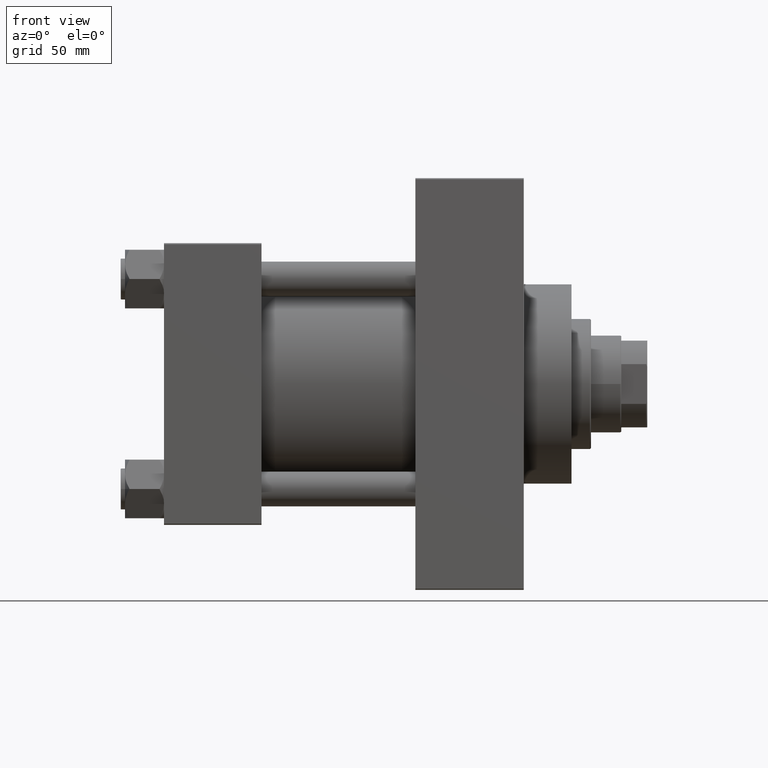
[diagram: clean part render]
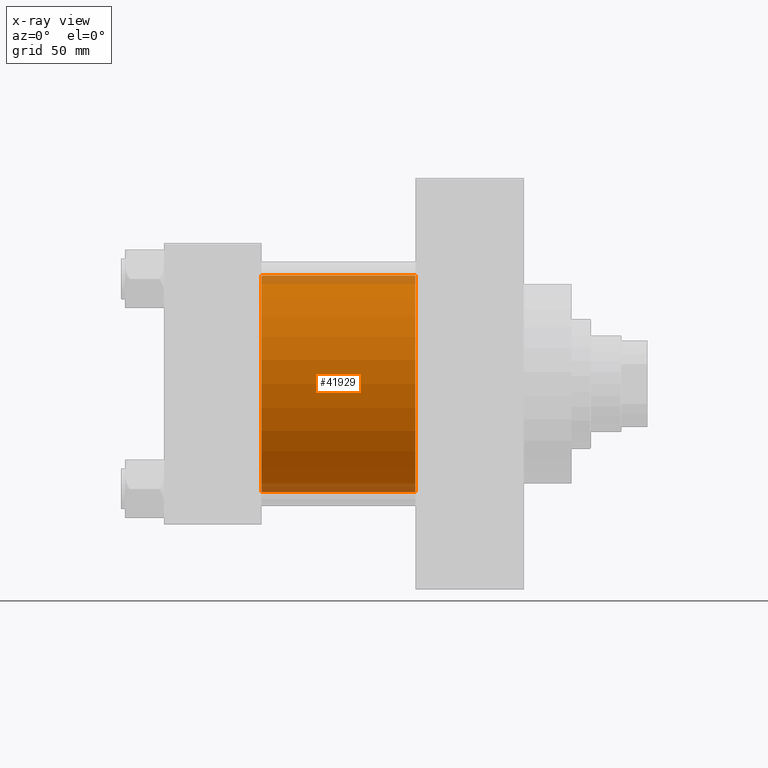
[diagram: x-ray — body ghosted, one internal face saturated and labeled with its STEP entity id]
A machine part, front view, then the same camera in x-ray: the body is ghosted and one INTERNAL B-rep face — a face not visible from any outside direction — is saturated and labeled: STEP entity #41929.
In plain terms, the highlighted cylindrical surface (partial cylindrical patch) has radius 50 mm, axis along (-1, -0, -0).
Its self-contained STEP definition (entity closure, byte-faithful):
#1729 = EDGE_CURVE ( 'NONE', #11624, #32581, #26544, .T. ) ;
#2536 = CARTESIAN_POINT ( 'NONE',  ( 45.00000000000000000, -2.602085213965210642E-15, 0.000000000000000000 ) ) ;
#3032 = AXIS2_PLACEMENT_3D ( 'NONE', #2536, #35621, #47186 ) ;
#3211 = CARTESIAN_POINT ( 'NONE',  ( 115.9999999999999858, -2.602085213965210642E-15, 50.00000000000000000 ) ) ;
#3365 = CARTESIAN_POINT ( 'NONE',  ( 115.9999999999999858, -2.602085213965210642E-15, 0.000000000000000000 ) ) ;
#5691 = VECTOR ( 'NONE', #9790, 1000.000000000000000 ) ;
#8310 = DIRECTION ( 'NONE',  ( 0.000000000000000000, 0.000000000000000000, -1.000000000000000000 ) ) ;
#8695 = EDGE_CURVE ( 'NONE', #11624, #27194, #9301, .T. ) ;
#9301 = CIRCLE ( 'NONE', #29423, 50.00000000000000000 ) ;
#9790 = DIRECTION ( 'NONE',  ( -1.000000000000000000, -0.000000000000000000, -0.000000000000000000 ) ) ;
#9828 = CARTESIAN_POINT ( 'NONE',  ( 115.9999999999999858, 3.521148781771555838E-15, -50.00000000000000000 ) ) ;
#11624 = VERTEX_POINT ( 'NONE', #3211 ) ;
#14356 = CIRCLE ( 'NONE', #3032, 50.00000000000000000 ) ;
#17856 = CARTESIAN_POINT ( 'NONE',  ( 115.9999999999999858, 3.521148781771555838E-15, -50.00000000000000000 ) ) ;
#19086 = ORIENTED_EDGE ( 'NONE', *, *, #1729, .F. ) ;
#20172 = CYLINDRICAL_SURFACE ( 'NONE', #41807, 50.00000000000000000 ) ;
#20425 = VECTOR ( 'NONE', #23013, 1000.000000000000000 ) ;
#23013 = DIRECTION ( 'NONE',  ( -1.000000000000000000, -0.000000000000000000, -0.000000000000000000 ) ) ;
#24215 = VERTEX_POINT ( 'NONE', #25147 ) ;
#25147 = CARTESIAN_POINT ( 'NONE',  ( 45.00000000000000000, 3.521148781771555838E-15, -50.00000000000000000 ) ) ;
#25930 = EDGE_LOOP ( 'NONE', ( #47015, #29632, #46909, #19086 ) ) ;
#26160 = LINE ( 'NONE', #17856, #5691 ) ;
#26544 = LINE ( 'NONE', #34103, #20425 ) ;
#27194 = VERTEX_POINT ( 'NONE', #9828 ) ;
#27978 = CARTESIAN_POINT ( 'NONE',  ( 115.9999999999999858, -2.602085213965210642E-15, 0.000000000000000000 ) ) ;
#29423 = AXIS2_PLACEMENT_3D ( 'NONE', #3365, #41674, #8310 ) ;
#29632 = ORIENTED_EDGE ( 'NONE', *, *, #48126, .T. ) ;
#32253 = DIRECTION ( 'NONE',  ( 0.000000000000000000, 0.000000000000000000, 1.000000000000000000 ) ) ;
#32581 = VERTEX_POINT ( 'NONE', #36669 ) ;
#34103 = CARTESIAN_POINT ( 'NONE',  ( 115.9999999999999858, -2.602085213965210642E-15, 50.00000000000000000 ) ) ;
#35621 = DIRECTION ( 'NONE',  ( 1.000000000000000000, 0.000000000000000000, 0.000000000000000000 ) ) ;
#36669 = CARTESIAN_POINT ( 'NONE',  ( 45.00000000000000000, -2.602085213965210642E-15, 50.00000000000000000 ) ) ;
#37405 = EDGE_CURVE ( 'NONE', #32581, #24215, #14356, .T. ) ;
#39306 = FACE_OUTER_BOUND ( 'NONE', #25930, .T. ) ;
#41674 = DIRECTION ( 'NONE',  ( 1.000000000000000000, 0.000000000000000000, 0.000000000000000000 ) ) ;
#41807 = AXIS2_PLACEMENT_3D ( 'NONE', #27978, #47089, #32253 ) ;
#41929 = ADVANCED_FACE ( 'NONE', ( #39306 ), #20172, .F. ) ;
#46909 = ORIENTED_EDGE ( 'NONE', *, *, #37405, .F. ) ;
#47015 = ORIENTED_EDGE ( 'NONE', *, *, #8695, .T. ) ;
#47089 = DIRECTION ( 'NONE',  ( -1.000000000000000000, -0.000000000000000000, -0.000000000000000000 ) ) ;
#47186 = DIRECTION ( 'NONE',  ( 0.000000000000000000, 0.000000000000000000, -1.000000000000000000 ) ) ;
#48126 = EDGE_CURVE ( 'NONE', #27194, #24215, #26160, .T. ) ;